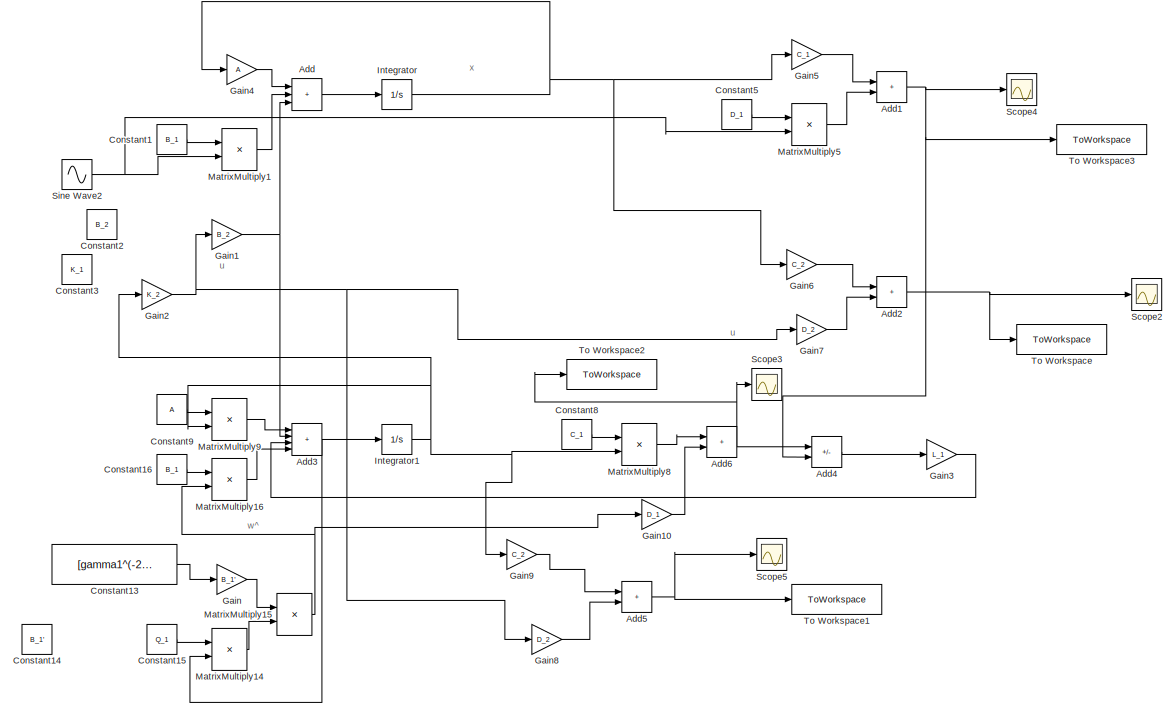
[diagram: root canvas - part 1/2, right side, full height]
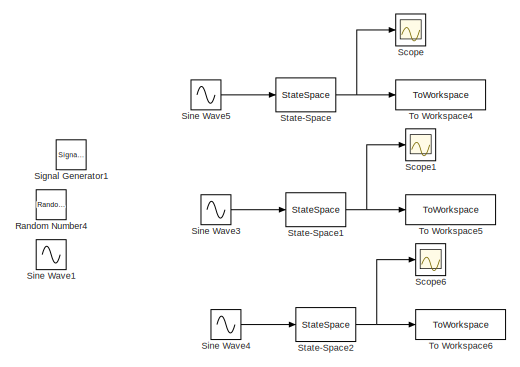
[diagram: root canvas - part 2/2, middle left region]
MODEL slx_71234ad9f243
KIND model
CONFIG AbsTol = auto
CONFIG EnableMultiTasking = off
CONFIG FixedStep = auto
CONFIG MaxStep = auto
CONFIG MinStep = auto
CONFIG RelTol = 1e-3
CONFIG SampleTimeConstraint = Unconstrained
CONFIG SolverName = VariableStepAuto
CONFIG StartTime = 0.0
CONFIG StopTime = 10
BLOCK [Sum] Add
  Commented = on
  IconShape = rectangular
  Inputs = +++
BLOCK [Sum] Add1
  Commented = on
  IconShape = rectangular
BLOCK [Sum] Add2
  Commented = on
  IconShape = rectangular
BLOCK [Sum] Add3
  Commented = on
  IconShape = rectangular
  Inputs = ++++
BLOCK [Sum] Add4
  Commented = on
  IconShape = rectangular
  Inputs = +-
BLOCK [Sum] Add5
  Commented = on
  IconShape = rectangular
BLOCK [Sum] Add6
  Commented = on
  IconShape = rectangular
BLOCK [Constant] Constant1
  Commented = on
  Value = B_1
BLOCK [Constant] Constant13
  Commented = on
  Value = [gamma1^(-2)]
BLOCK [Constant] Constant14
  Commented = on
  Value = B_1'
BLOCK [Constant] Constant15
  Commented = on
  Value = Q_1
BLOCK [Constant] Constant16
  Commented = on
  Value = B_1
BLOCK [Constant] Constant2
  Commented = on
  Value = B_2
BLOCK [Constant] Constant3
  Commented = on
  Value = K_1
BLOCK [Constant] Constant5
  Commented = on
  Value = D_1
BLOCK [Constant] Constant8
  Commented = on
  Value = C_1
BLOCK [Constant] Constant9
  Commented = on
  Value = A
BLOCK [Gain] Gain
  Commented = on
  Gain = B_1'
BLOCK [Gain] Gain1
  Commented = on
  Gain = B_2
  Multiplication = Matrix(K*u)
BLOCK [Gain] Gain10
  Commented = on
  Gain = D_1
  Multiplication = Matrix(K*u)
BLOCK [Gain] Gain2
  Commented = on
  Gain = K_2
  Multiplication = Matrix(K*u)
BLOCK [Gain] Gain3
  Commented = on
  Gain = L_1
  Multiplication = Matrix(K*u)
BLOCK [Gain] Gain4
  Commented = on
  Gain = A
  Multiplication = Matrix(K*u)
BLOCK [Gain] Gain5
  Commented = on
  Gain = C_1
  Multiplication = Matrix(K*u)
BLOCK [Gain] Gain6
  Commented = on
  Gain = C_2
  Multiplication = Matrix(K*u)
BLOCK [Gain] Gain7
  Commented = on
  Gain = D_2
  Multiplication = Matrix(K*u)
BLOCK [Gain] Gain8
  Commented = on
  Gain = D_2
  Multiplication = Matrix(K*u)
BLOCK [Gain] Gain9
  Commented = on
  Gain = C_2
  Multiplication = Matrix(K*u)
BLOCK [Integrator] Integrator
  Commented = on
  InitialCondition = x_0
BLOCK [Integrator] Integrator1
  Commented = on
  InitialCondition = [4; 5]
BLOCK [Product] MatrixMultiply1
  Commented = on
  Multiplication = Matrix(*)
BLOCK [Product] MatrixMultiply14
  Commented = on
  Multiplication = Matrix(*)
BLOCK [Product] MatrixMultiply15
  Commented = on
  Multiplication = Matrix(*)
BLOCK [Product] MatrixMultiply16
  Commented = on
  Multiplication = Matrix(*)
BLOCK [Product] MatrixMultiply5
  Commented = on
  Multiplication = Matrix(*)
BLOCK [Product] MatrixMultiply8
  Commented = on
  Multiplication = Matrix(*)
BLOCK [Product] MatrixMultiply9
  Commented = on
  Multiplication = Matrix(*)
BLOCK [RandomNumber] Random Number4
  SampleTime = 0.001
BLOCK [Scope] Scope
  Floating = off
  NumInputPorts = 1
  ScopeSpecificationString = Simulink.scopes.TimeScopeBlockCfg('CurrentConfiguration', extmgr.ConfigurationSet(extmgr.Configuration('Core','General UI',true),extmgr.Configuration('Core','Source UI',true),extmgr.Configuration('Sources','WiredSimulink',true,'DataLoggingVariableName','ScopeData1'),extmgr.Configuration('Visuals','Time Domain',true,'SerializedDisplays',{struct('MinYLimReal','-79.66807','MaxYLimReal','79.66806','YL...<+1458ch>
BLOCK [Scope] Scope1
  Floating = off
  NumInputPorts = 1
  ScopeSpecificationString = Simulink.scopes.TimeScopeBlockCfg('CurrentConfiguration', extmgr.ConfigurationSet(extmgr.Configuration('Core','General UI',true),extmgr.Configuration('Core','Source UI',true),extmgr.Configuration('Sources','WiredSimulink',true,'DataLoggingVariableName','ScopeData1'),extmgr.Configuration('Visuals','Time Domain',true,'SerializedDisplays',{struct('MinYLimReal','-78.76767','MaxYLimReal','80.42349','YL...<+1461ch>
BLOCK [Scope] Scope2
  Commented = on
  Floating = off
  NumInputPorts = 1
  ScopeSpecificationString = Simulink.scopes.TimeScopeBlockCfg('CurrentConfiguration', extmgr.ConfigurationSet(extmgr.Configuration('Core','General UI',true),extmgr.Configuration('Core','Source UI',true),extmgr.Configuration('Sources','WiredSimulink',true,'DataLoggingVariableName','ScopeData3'),extmgr.Configuration('Visuals','Time Domain',true,'SerializedDisplays',{struct('MinYLimReal','-98637298144895607901478861374931432559...<+3846ch>
BLOCK [Scope] Scope3
  Commented = on
  Floating = off
  NumInputPorts = 1
  ScopeSpecificationString = Simulink.scopes.TimeScopeBlockCfg('CurrentConfiguration', extmgr.ConfigurationSet(extmgr.Configuration('Core','General UI',true),extmgr.Configuration('Core','Source UI',true),extmgr.Configuration('Sources','WiredSimulink',true,'DataLoggingVariableName','ScopeData4'),extmgr.Configuration('Visuals','Time Domain',true,'SerializedDisplays',{struct('MinYLimReal','-546.17018','MaxYLimReal','527.59962','...<+1377ch>
BLOCK [Scope] Scope4
  Commented = on
  Floating = off
  NumInputPorts = 1
  ScopeSpecificationString = Simulink.scopes.TimeScopeBlockCfg('CurrentConfiguration', extmgr.ConfigurationSet(extmgr.Configuration('Core','General UI',true),extmgr.Configuration('Core','Source UI',true),extmgr.Configuration('Sources','WiredSimulink',true,'DataLoggingVariableName','ScopeData5'),extmgr.Configuration('Visuals','Time Domain',true,'SerializedDisplays',{struct('MinYLimReal','-1032.93715','MaxYLimReal','1032.9377',...<+1381ch>
BLOCK [Scope] Scope5
  Commented = on
  Floating = off
  NumInputPorts = 1
  ScopeSpecificationString = Simulink.scopes.TimeScopeBlockCfg('CurrentConfiguration', extmgr.ConfigurationSet(extmgr.Configuration('Core','General UI',true),extmgr.Configuration('Core','Source UI',true),extmgr.Configuration('Sources','WiredSimulink',true),extmgr.Configuration('Visuals','Time Domain',true,'SerializedDisplays',{struct('MinYLimReal','-99.3587','MaxYLimReal','79.73228','YLabelReal','','MinYLimMag','0.00000','Max...<+1346ch>
BLOCK [Scope] Scope6
  Floating = off
  NumInputPorts = 1
  ScopeSpecificationString = Simulink.scopes.TimeScopeBlockCfg('CurrentConfiguration', extmgr.ConfigurationSet(extmgr.Configuration('Core','General UI',true),extmgr.Configuration('Core','Source UI',true),extmgr.Configuration('Sources','WiredSimulink',true,'DataLoggingVariableName','ScopeData2'),extmgr.Configuration('Visuals','Time Domain',true,'SerializedDisplays',{struct('MinYLimReal','-81.25514','MaxYLimReal','90.35078','YL...<+1461ch>
BLOCK [SignalGenerator] Signal Generator1
  Amplitude = 0.1
  Frequency = 5
  Units = rad/sec
  WaveForm = square
BLOCK [Sin] Sine Wave1
  SampleTime = 0
BLOCK [Sin] Sine Wave2
  Amplitude = 5
  Commented = on
  SampleTime = 0
BLOCK [Sin] Sine Wave3
  Amplitude = 10
  Frequency = 10
  SampleTime = 0
BLOCK [Sin] Sine Wave4
  Amplitude = 10
  Frequency = 30
  SampleTime = 0
BLOCK [Sin] Sine Wave5
  Amplitude = 10
  SampleTime = 0
BLOCK [StateSpace] State-Space
  A = As
  B = Bs
  C = Cs
  D = Ds
  InitialCondition = [1, 2; 3, 4]
BLOCK [StateSpace] State-Space1
  A = As
  B = Bs
  C = Cs
  D = Ds
  InitialCondition = [1, 2; 3, 4]
BLOCK [StateSpace] State-Space2
  A = As
  B = Bs
  C = Cs
  D = Ds
  InitialCondition = [1, 2; 3, 4]
BLOCK [ToWorkspace] To Workspace
  Commented = on
  FixptAsFi = on
  MaxDataPoints = inf
  SampleTime = -1
  SaveFormat = Timeseries
  VariableName = z
BLOCK [ToWorkspace] To Workspace1
  Commented = on
  MaxDataPoints = inf
  SampleTime = -1
  SaveFormat = Timeseries
  VariableName = z1
BLOCK [ToWorkspace] To Workspace2
  Commented = on
  FixptAsFi = on
  MaxDataPoints = inf
  SampleTime = -1
  SaveFormat = Timeseries
  VariableName = y
BLOCK [ToWorkspace] To Workspace3
  Commented = on
  FixptAsFi = on
  MaxDataPoints = inf
  SampleTime = -1
  SaveFormat = Timeseries
  VariableName = y1
BLOCK [ToWorkspace] To Workspace4
  FixptAsFi = on
  MaxDataPoints = inf
  SampleTime = -1
  SaveFormat = Timeseries
  VariableName = z
BLOCK [ToWorkspace] To Workspace5
  FixptAsFi = on
  MaxDataPoints = inf
  SampleTime = -1
  SaveFormat = Timeseries
  VariableName = z1
BLOCK [ToWorkspace] To Workspace6
  FixptAsFi = on
  MaxDataPoints = inf
  SampleTime = -1
  SaveFormat = Timeseries
  VariableName = z2
ANNOTATION (root): u
ANNOTATION (root): w^
ANNOTATION (root): x
NET Add1:1 -> Add4:2, Scope4:1, To Workspace3:1
NET Add2:1 -> Scope2:1, To Workspace:1
NET Add3:1 -> Integrator1:1, MatrixMultiply14:2
LINE Add4:1 -> Gain3:1
NET Add5:1 -> Scope5:1, To Workspace1:1
NET Add6:1 -> Add4:1, Scope3:1, To Workspace2:1
LINE Add:1 -> Integrator:1
LINE Constant13:1 -> Gain:1
LINE Constant15:1 -> MatrixMultiply14:1
LINE Constant16:1 -> MatrixMultiply16:1
LINE Constant1:1 -> MatrixMultiply1:1
LINE Constant5:1 -> MatrixMultiply5:1
LINE Constant8:1 -> MatrixMultiply8:1
LINE Constant9:1 -> MatrixMultiply9:1
LINE Gain10:1 -> Add6:2
NET Gain1:1 -> Add3:2, Add:3
NET Gain2:1 -> Gain1:1, Gain7:1, Gain8:1
LINE Gain3:1 -> Add3:3
LINE Gain4:1 -> Add:1
LINE Gain5:1 -> Add1:1
LINE Gain6:1 -> Add2:1
LINE Gain7:1 -> Add2:2
LINE Gain8:1 -> Add5:2
LINE Gain9:1 -> Add5:1
LINE Gain:1 -> MatrixMultiply15:1
NET Integrator1:1 -> Gain2:1, Gain9:1, MatrixMultiply8:2, MatrixMultiply9:2
NET Integrator:1 -> Gain4:1, Gain5:1, Gain6:1
LINE MatrixMultiply14:1 -> MatrixMultiply15:2
NET MatrixMultiply15:1 -> Gain10:1, MatrixMultiply16:2
LINE MatrixMultiply16:1 -> Add3:4
LINE MatrixMultiply1:1 -> Add:2
LINE MatrixMultiply5:1 -> Add1:2
LINE MatrixMultiply8:1 -> Add6:1
LINE MatrixMultiply9:1 -> Add3:1
NET Sine Wave2:1 -> MatrixMultiply1:2, MatrixMultiply5:2
LINE Sine Wave3:1 -> State-Space1:1
LINE Sine Wave4:1 -> State-Space2:1
LINE Sine Wave5:1 -> State-Space:1
NET State-Space1:1 -> Scope1:1, To Workspace5:1
NET State-Space2:1 -> Scope6:1, To Workspace6:1
NET State-Space:1 -> Scope:1, To Workspace4:1
note: NET lines group one-source signal fan-out (src -> all destinations, sorted); 1:1 wires keep LINE
